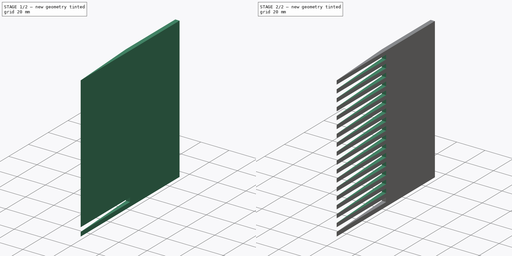
[diagram: build sequence overview — one tinted view per stage of 2, left to right]
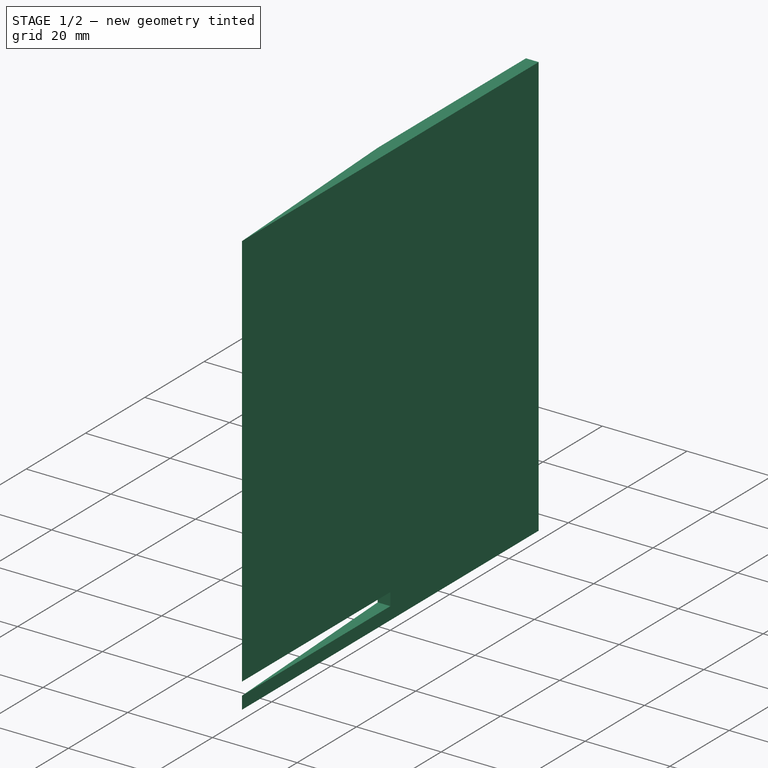
[diagram: stage 1 of 2 — iso view after this stage's code; geometry added in this stage tinted green]
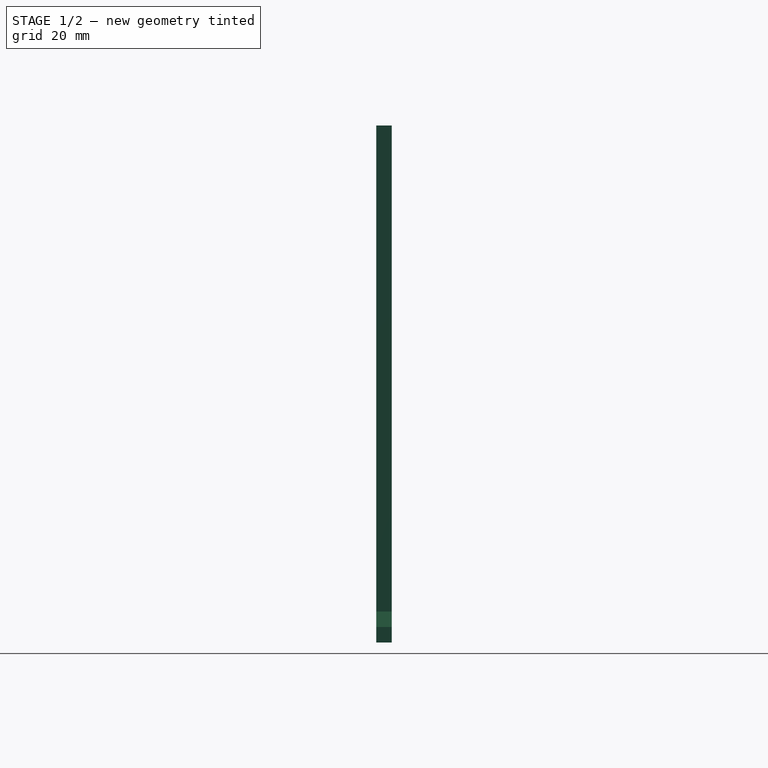
[diagram: stage 1 of 2 — front view after this stage's code; geometry added in this stage tinted green]
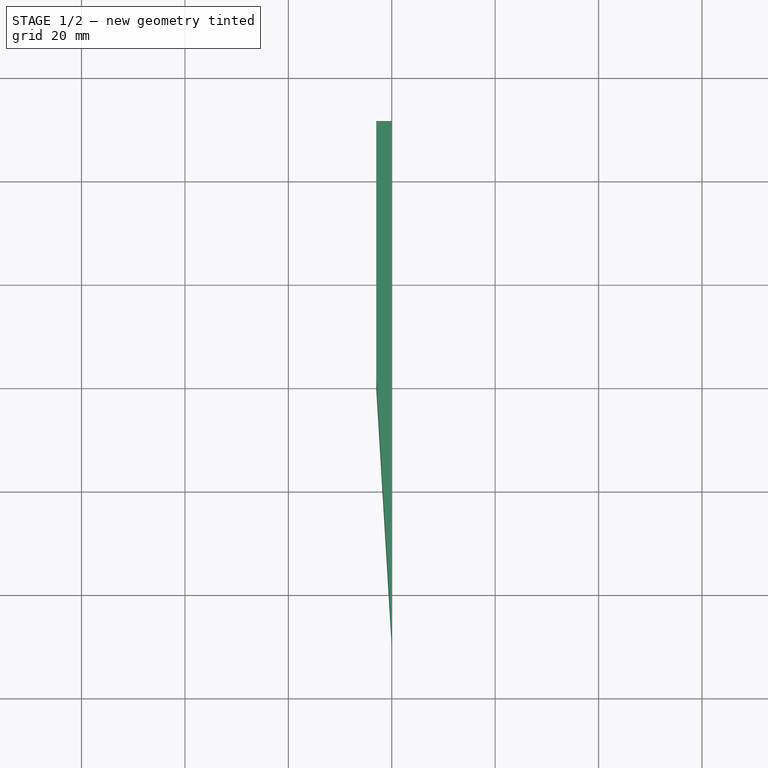
[diagram: stage 1 of 2 — top view after this stage's code; geometry added in this stage tinted green]
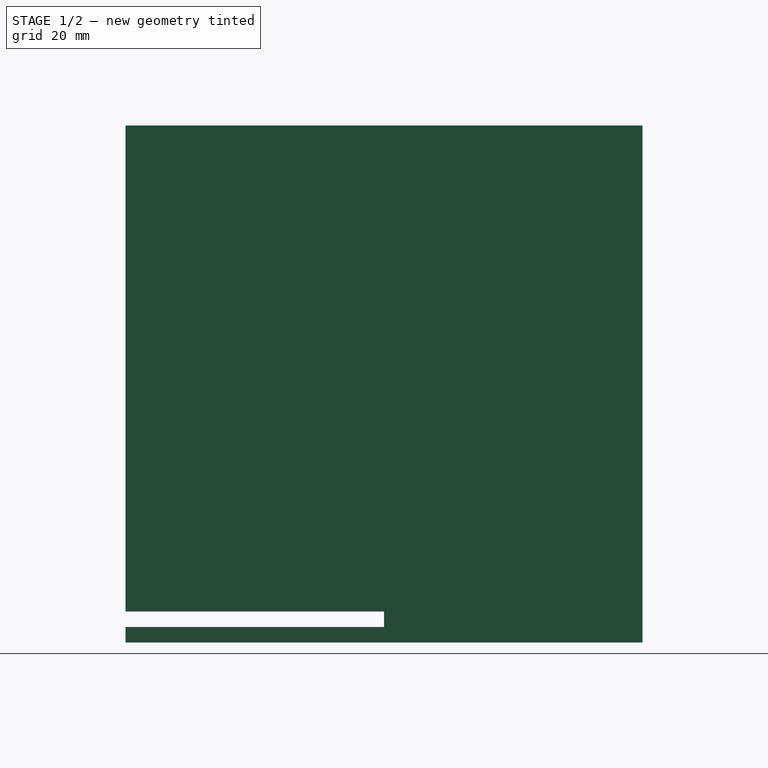
[diagram: stage 1 of 2 — right view after this stage's code; geometry added in this stage tinted green]
FCSTD DOCUMENT  (FreeCAD 0.18R16146 (Git))
Label: fur-comb
License: All rights reserved
LicenseURL: http://en.wikipedia.org/wiki/All_rights_reserved
objects: Sketcher::SketchObject×2, PartDesign::Pad×1, PartDesign::Pocket×1, PartDesign::LinearPattern×1, PartDesign::Fillet×1, PartDesign::Body×1
note: 9 computed .brp shape members not serialized (recipe doc carries the construction recipe); baked Part::Feature solids carry a one-line shape summary decoded from their .brp

FEATURE [Sketcher::SketchObject] Sketch
  MapMode = 5
  Support = -> [XY_Plane]
  sketch-geometry (6):
    g0: LineSegment StartX=-3 StartY=0 StartZ=0 EndX=-3 EndY=50 EndZ=0
    g1: LineSegment StartX=-3 StartY=0 StartZ=0 EndX=2.7e-15 EndY=-50 EndZ=0
    g2: LineSegment StartX=2.7e-15 StartY=-50 StartZ=0 EndX=0 EndY=0 EndZ=0
    g3: LineSegment StartX=-3 StartY=50 StartZ=0 EndX=0 EndY=50 EndZ=0
    g4: LineSegment StartX=0 StartY=50 StartZ=0 EndX=0 EndY=0 EndZ=0
    g5: GeomPoint X=-21.0624 Y=-30 Z=0
  constraints (12):
    c: Coincident(g4,g3)
    c: Coincident(g0,g3)
    c: DistanceY(g1,g1) = 50
    c: Coincident(g2,g1)
    c: DistanceY(g1,g3) = 50
    c: Coincident(g0,g1)
    c: Coincident(g4,g2)
    c: Horizontal(g2,g0)
    c: Horizontal(g3)
    c: DistanceX(g0,g3) = 3
    c: Vertical(g0)
    c: Vertical(g4)
FEATURE [PartDesign::Pad] Pad
  Length = 100
  Length2 = 100
  Profile = -> Sketch
  Type = 0
FEATURE [Sketcher::SketchObject] Sketch001
  MapMode = 5
  Placement = pos=(0,0,0) rot=(1,0,0;1.5708rad)
  Support = -> [XZ_Plane]
  sketch-geometry (5):
    g0: LineSegment StartX=-20.2751 StartY=6 StartZ=0 EndX=19.7249 EndY=6 EndZ=0
    g1: LineSegment StartX=19.7249 StartY=6 StartZ=0 EndX=19.7249 EndY=3 EndZ=0
    g2: LineSegment StartX=19.7249 StartY=3 StartZ=0 EndX=-20.2751 EndY=3 EndZ=0
    g3: LineSegment StartX=-20.2751 StartY=3 StartZ=0 EndX=-20.2751 EndY=6 EndZ=0
    g4: GeomPoint X=-0.275086 Y=3 Z=0
  constraints (12):
    c: Coincident(g0,g1)
    c: Coincident(g1,g2)
    c: Coincident(g2,g3)
    c: Coincident(g3,g0)
    c: Horizontal(g0)
    c: Horizontal(g2)
    c: Vertical(g1)
    c: Vertical(g3)
    c: Symmetric(g2,g1,g4)
    c: DistanceX(g0,g0) = 40
    c: DistanceY(g3,g3) = 3
    c: DistanceY(g-1,g4) = 3
FEATURE [PartDesign::Pocket] Pocket
  BaseFeature = -> Pad
  Length = 60
  Length2 = 100
  Profile = -> Sketch001
  Reversed = true
  Type = 0
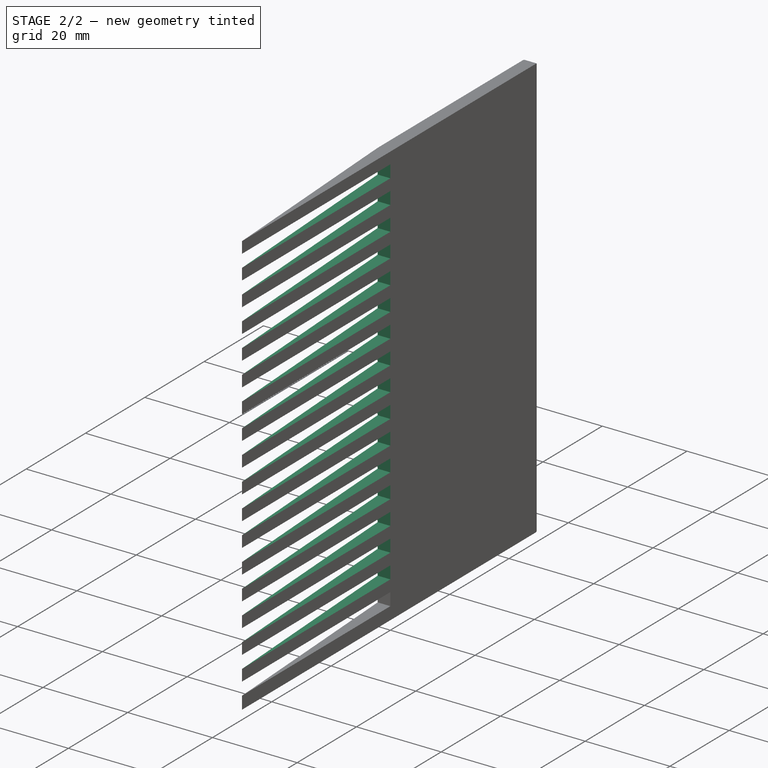
[diagram: stage 2 of 2 — iso view after this stage's code; geometry added in this stage tinted green]
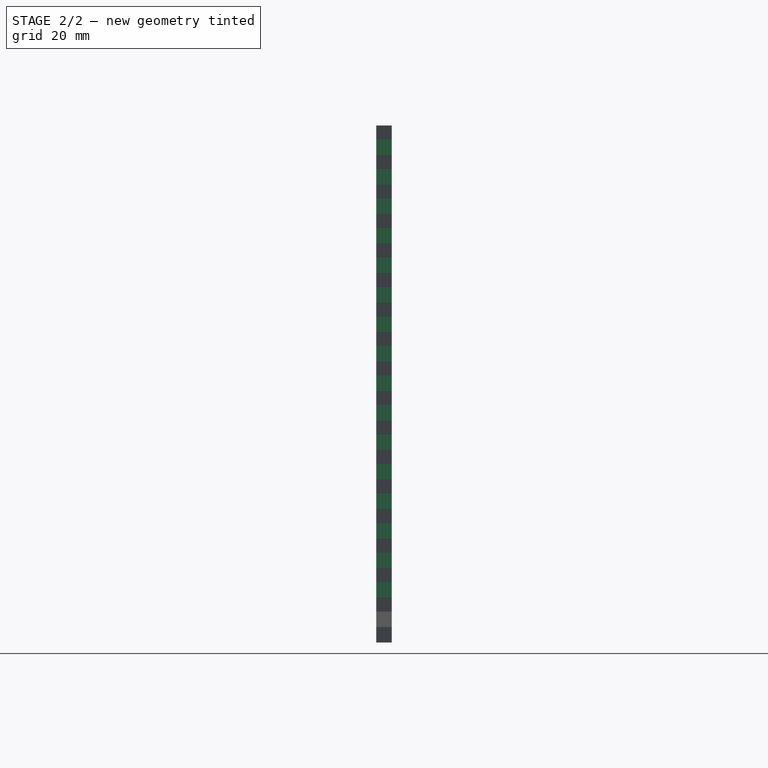
[diagram: stage 2 of 2 — front view after this stage's code; geometry added in this stage tinted green]
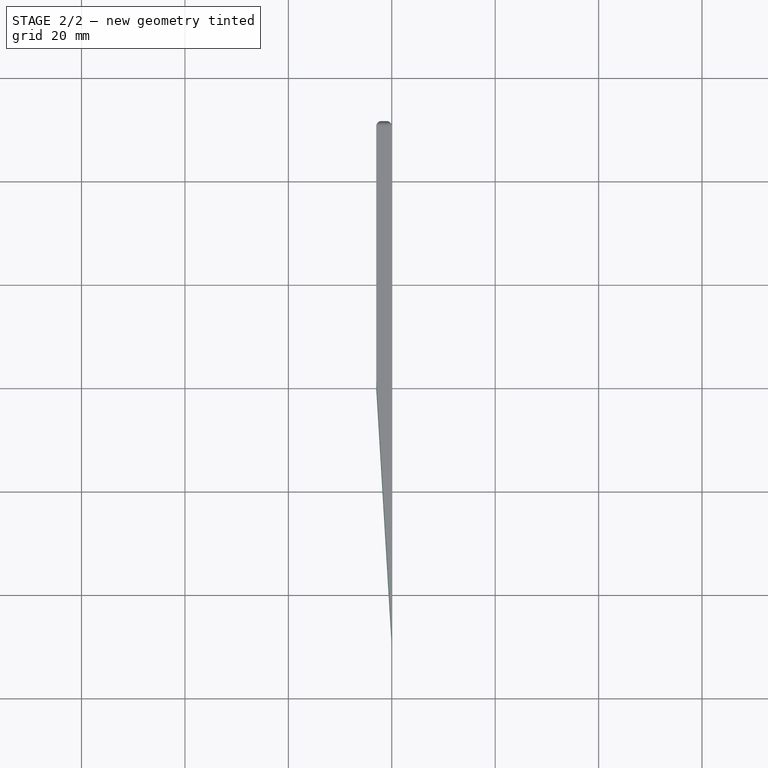
[diagram: stage 2 of 2 — top view after this stage's code; geometry added in this stage tinted green]
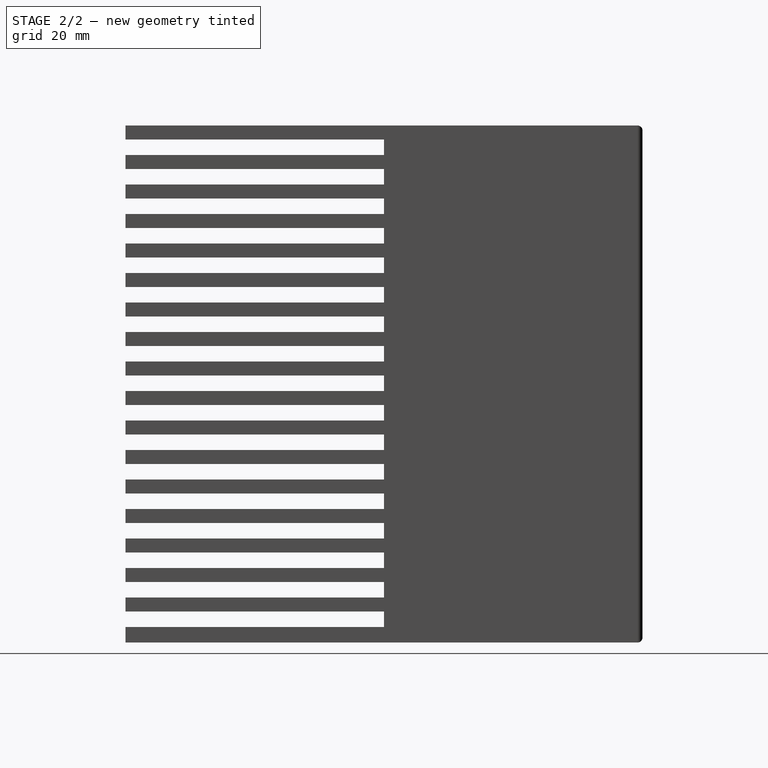
[diagram: stage 2 of 2 — right view after this stage's code; geometry added in this stage tinted green]
FEATURE [PartDesign::LinearPattern] LinearPattern
  BaseFeature = -> Pocket
  Direction = -> Z_Axis
  Length = 97
  Occurrences = 18
  Originals = -> [Pocket]
FEATURE [PartDesign::Fillet] Fillet
  Base = -> LinearPattern [Face37]
  BaseFeature = -> LinearPattern
  Radius = 1
FEATURE [PartDesign::Body] Body
  Group = -> [Sketch,Pad,Sketch001,Pocket,LinearPattern,Fillet]
  Origin = -> Origin
  Tip = -> Fillet
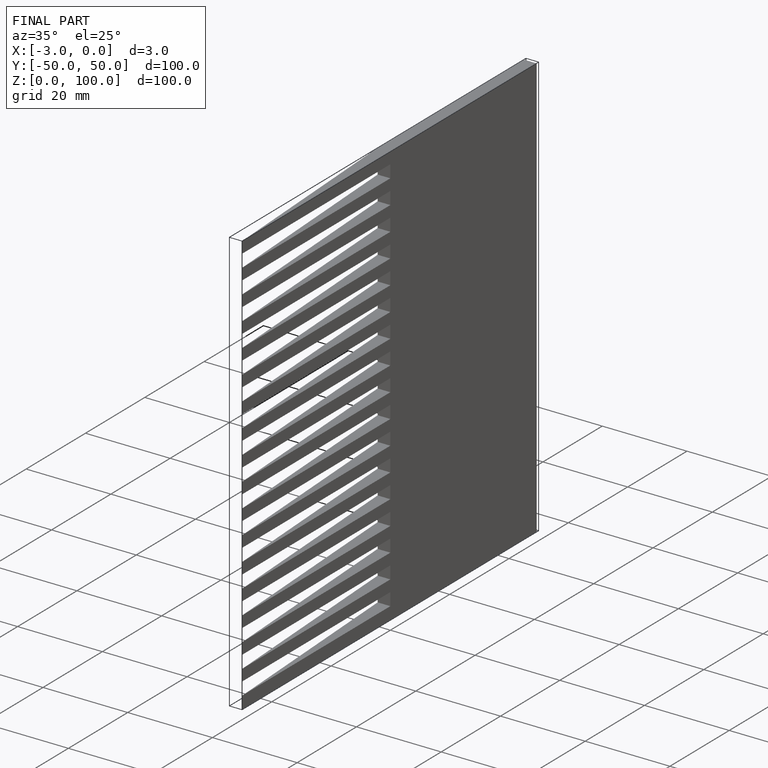
[diagram: finished part — iso view with bounding-box wireframe]
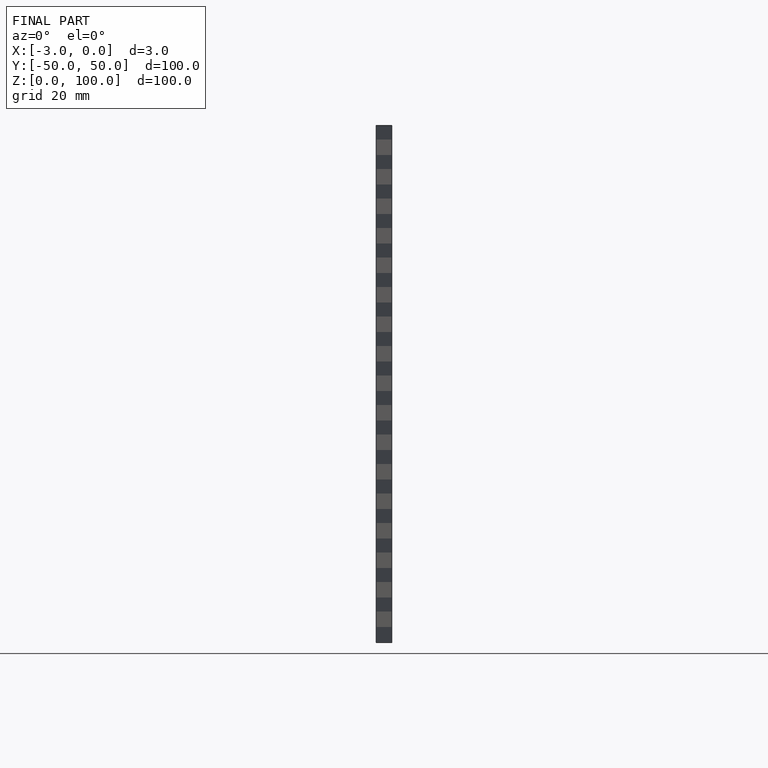
[diagram: finished part — front view with bounding-box wireframe]
